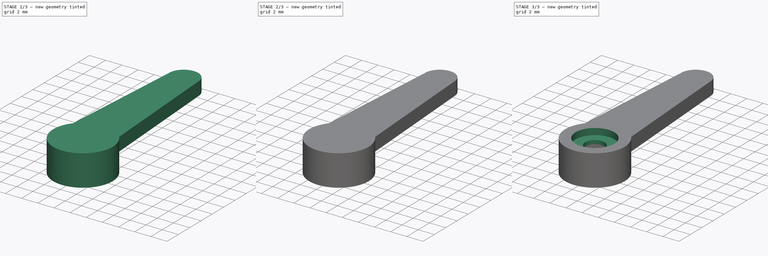
[diagram: build sequence overview — one tinted view per stage of 3, left to right]
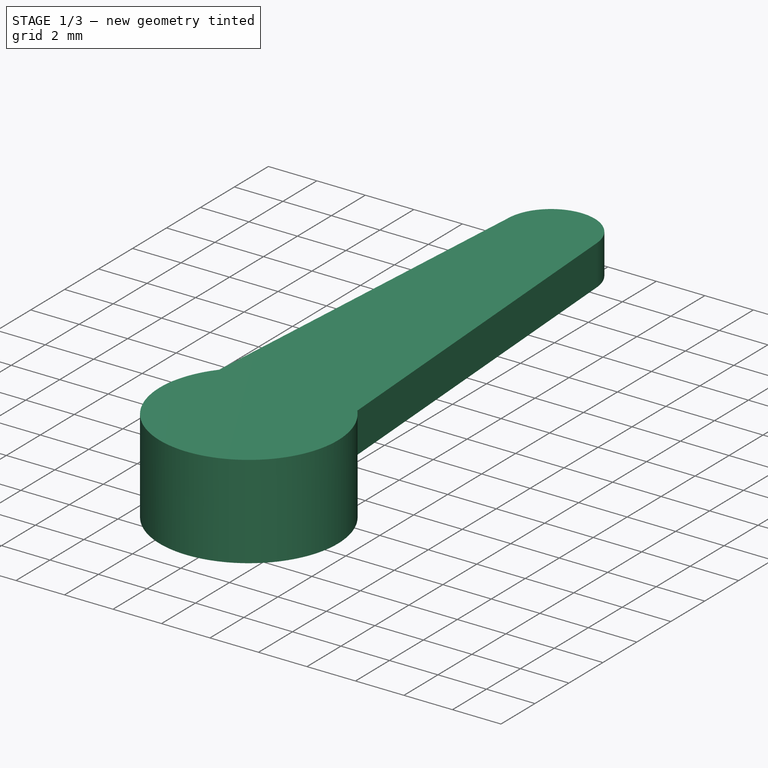
[diagram: stage 1 of 3 — iso view after this stage's code; geometry added in this stage tinted green]
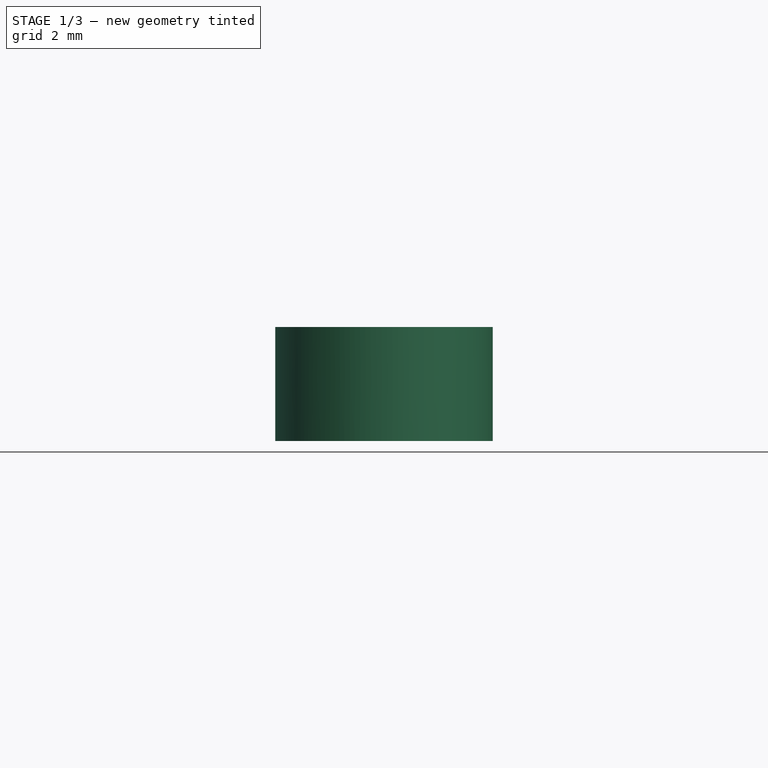
[diagram: stage 1 of 3 — front view after this stage's code; geometry added in this stage tinted green]
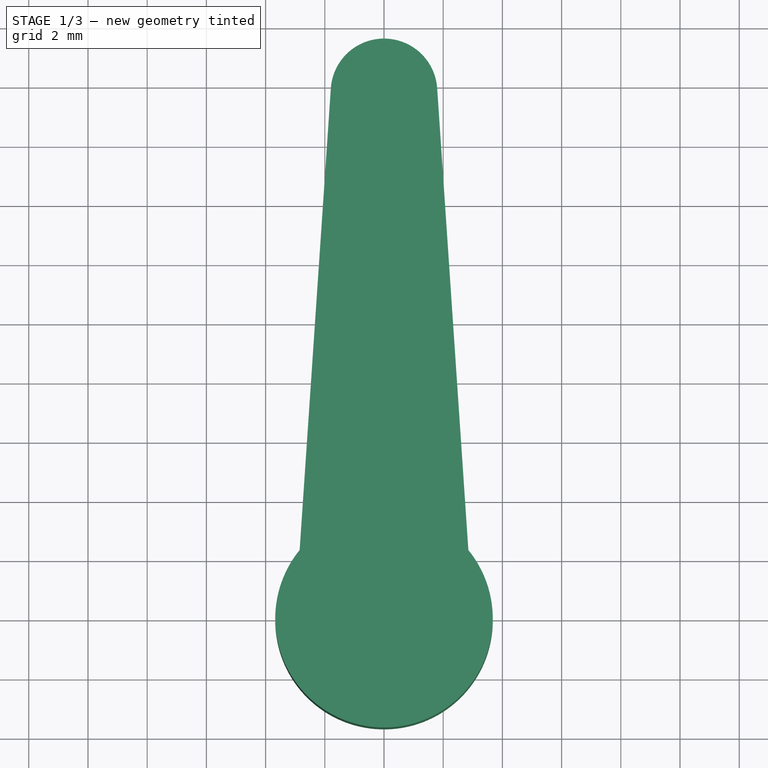
[diagram: stage 1 of 3 — top view after this stage's code; geometry added in this stage tinted green]
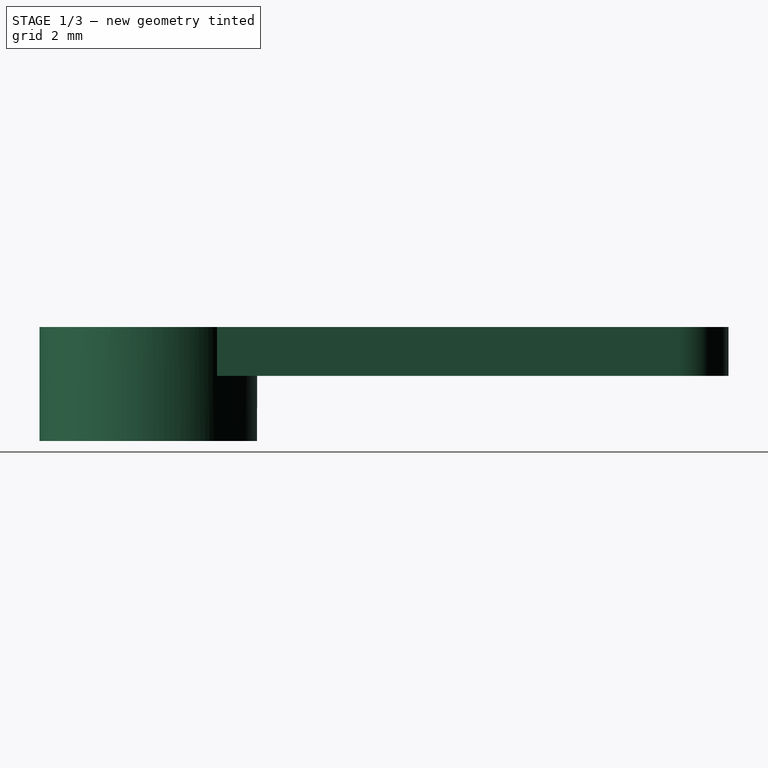
[diagram: stage 1 of 3 — right view after this stage's code; geometry added in this stage tinted green]
FCSTD DOCUMENT  (FreeCAD 0.16R6668 (Git))
Label: servohebel
License: All rights reserved
LicenseURL: http://de.wikipedia.org/wiki/Alle_Rechte_vorbehalten
objects: Sketcher::SketchObject×5, PartDesign::Pocket×3, PartDesign::Pad×2
note: 15 computed .brp shape members not serialized (recipe doc carries the construction recipe); baked Part::Feature solids carry a one-line shape summary decoded from their .brp

FEATURE [Sketcher::SketchObject] Sketch
  sketch-geometry (5):
    g0: LineSegment StartX=-1.7959 StartY=17.9214 StartZ=0 EndX=-2.85 EndY=2.32016 EndZ=0
    g1: LineSegment StartX=1.7959 StartY=17.9214 StartZ=0 EndX=2.85 EndY=2.32016 EndZ=0
    g2: ArcOfCircle CenterX=0 CenterY=17.8 CenterZ=0 NormalX=0 NormalY=0 NormalZ=1 Radius=1.8 StartAngle=0.0674711 EndAngle=3.07412
    g3: ArcOfCircle CenterX=0 CenterY=0 CenterZ=0 NormalX=0 NormalY=0 NormalZ=1 Radius=3.675 StartAngle=2.45832 EndAngle=6.96646
    g4: GeomPoint [constr] X=0 Y=16 Z=0
  constraints (15):
    c: Coincident(g2,g0)
    c: Coincident(g2,g1)
    c: Coincident(g3,g0)
    c: Coincident(g3,g1)
    c: Coincident(g3,g-1)
    c: PointOnObject(g2,g-2)
    c: Tangent(g2,g0)
    c: Tangent(g2,g1)
    c: Symmetric(g0,g1,g-2)
    c: Radius(g3) = 3.675
    c: Radius(g2) = 1.8
    c: Distance(g0,g1) = 5.7
    c: PointOnObject(g4,g2)
    c: PointOnObject(g4,g-2)
    c: Distance(g-1,g4) = 16
FEATURE [PartDesign::Pad] Pad
  Length = 1.65
  Length2 = 100
  Reversed = true
  Sketch = -> Sketch
  Type = 0
FEATURE [Sketcher::SketchObject] Sketch001
  Placement = pos=(0,0,-1.65) rot=(1,0,0;3.14159rad)
  Support = -> Pad [Face6]
  sketch-geometry (1):
    g0: Circle CenterX=0 CenterY=0 CenterZ=0 NormalX=0 NormalY=0 NormalZ=1 Radius=3.675
  constraints (2):
    c: Coincident(g0,g-1)
    c: Radius(g0) = 3.675
FEATURE [PartDesign::Pad] Pad001
  Length = 2.2
  Length2 = 100
  Sketch = -> Sketch001
  Type = 0
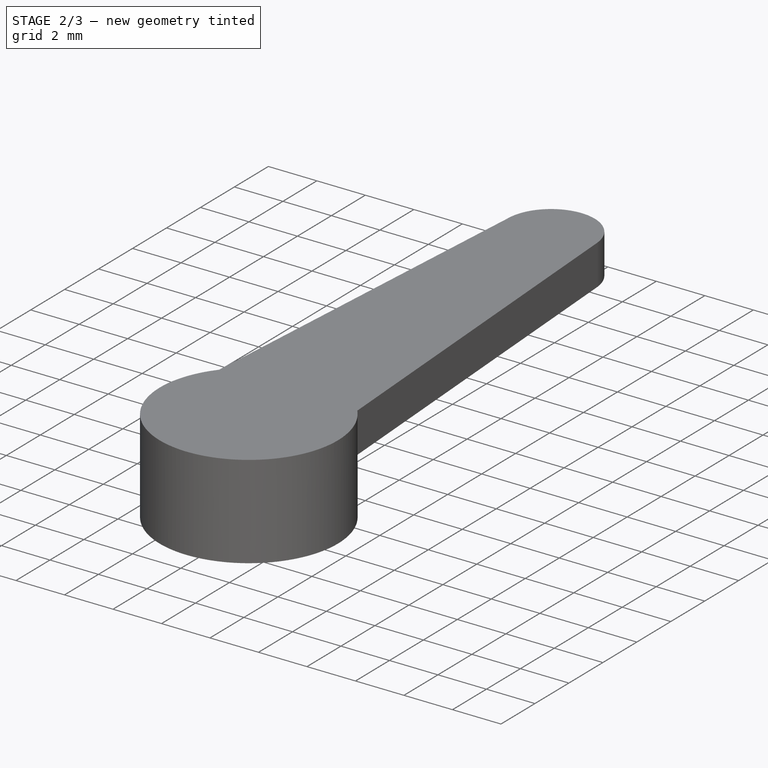
[diagram: stage 2 of 3 — iso view after this stage's code; geometry added in this stage tinted green]
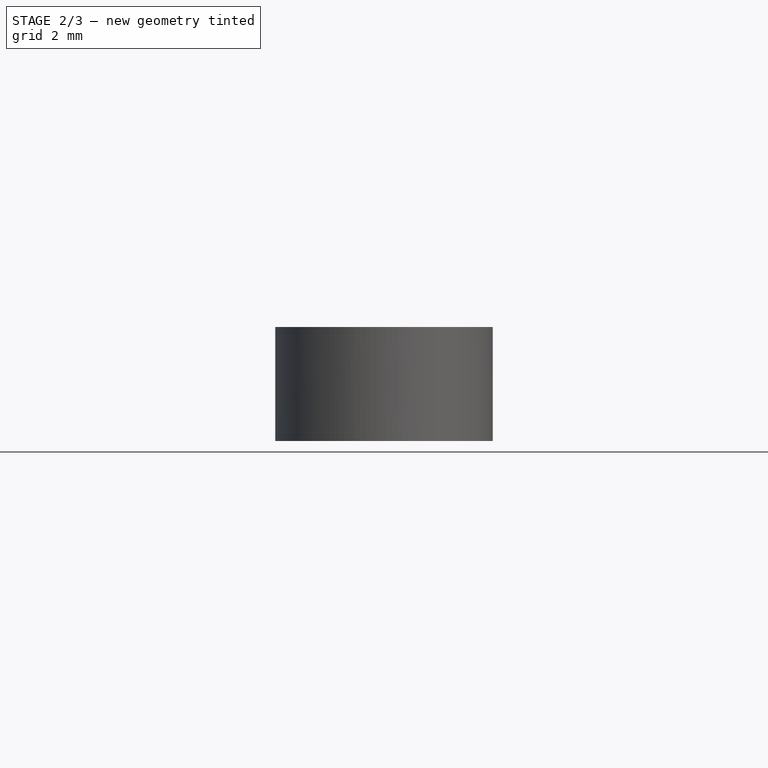
[diagram: stage 2 of 3 — front view after this stage's code; geometry added in this stage tinted green]
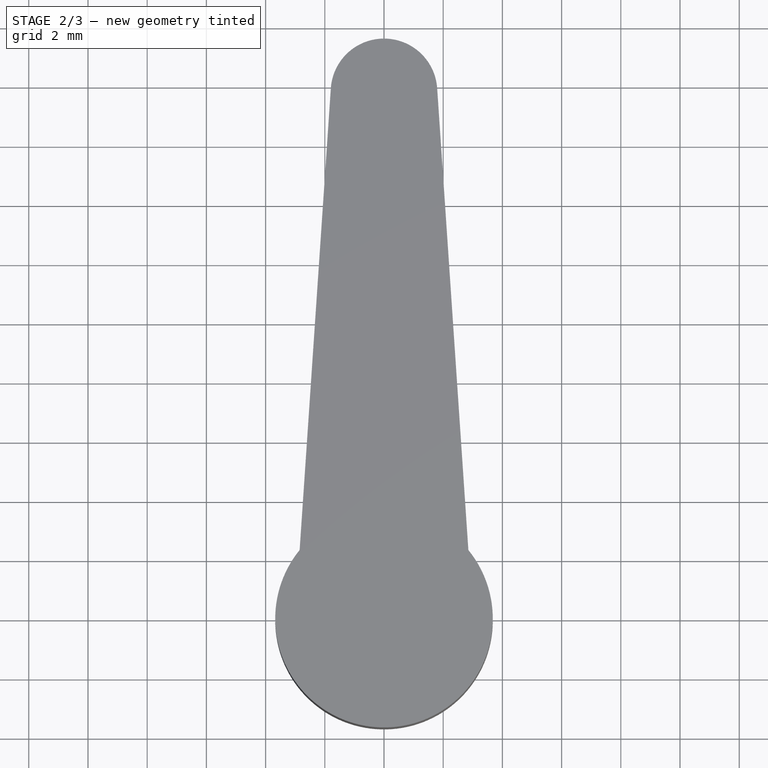
[diagram: stage 2 of 3 — top view after this stage's code; geometry added in this stage tinted green]
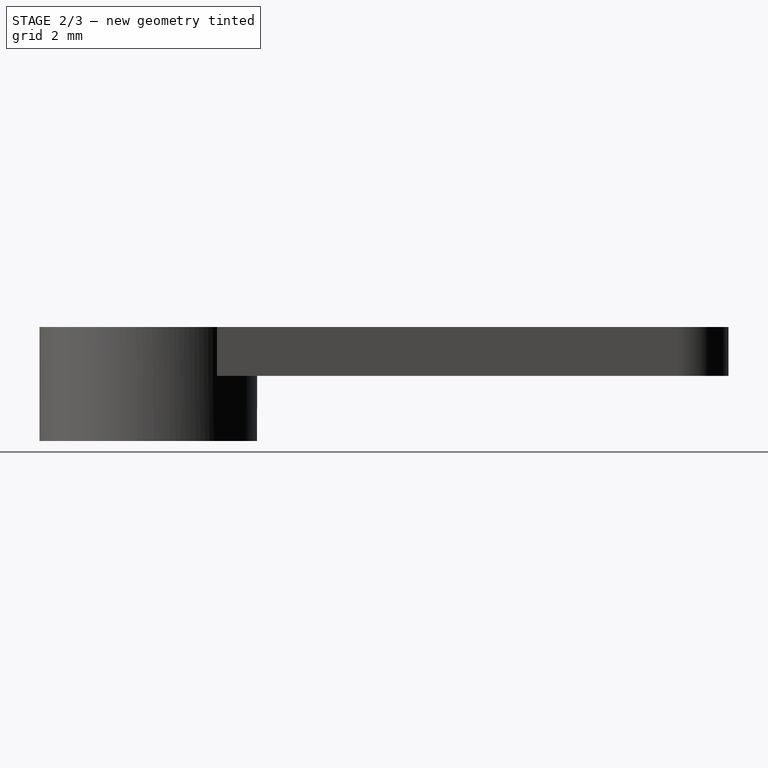
[diagram: stage 2 of 3 — right view after this stage's code; geometry added in this stage tinted green]
FEATURE [Sketcher::SketchObject] Sketch002
  Placement = pos=(0,0,-3.85) rot=(1,0,0;3.14159rad)
  Support = -> Pad001 [Face8]
  sketch-geometry (1):
    g0: Circle CenterX=0 CenterY=0 CenterZ=0 NormalX=0 NormalY=0 NormalZ=1 Radius=1.65
  constraints (2):
    c: Coincident(g0,g-1)
    c: Radius(g0) = 1.65
FEATURE [PartDesign::Pocket] Pocket
  Length = 2.6
  Sketch = -> Sketch002
  Type = 0
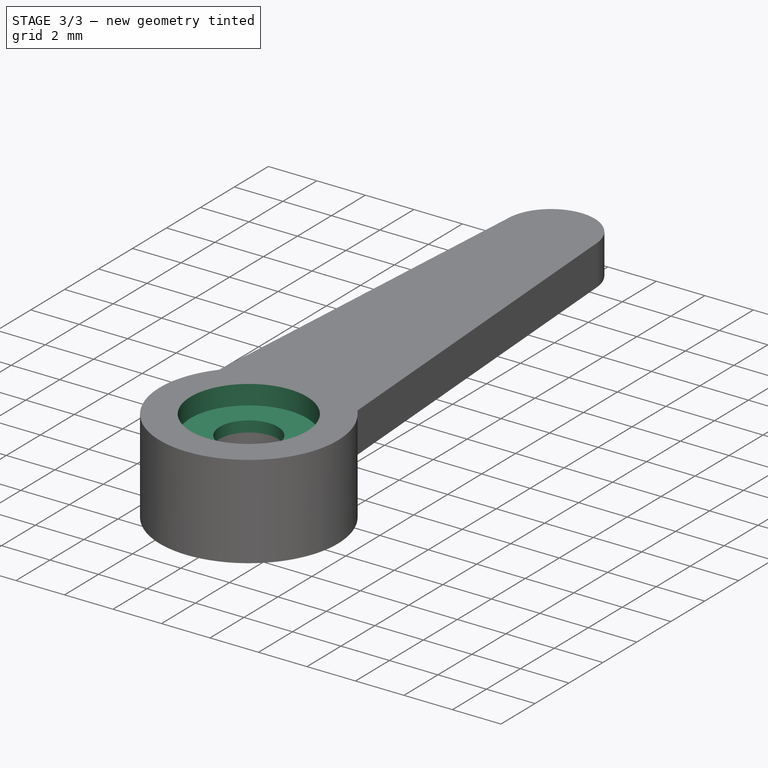
[diagram: stage 3 of 3 — iso view after this stage's code; geometry added in this stage tinted green]
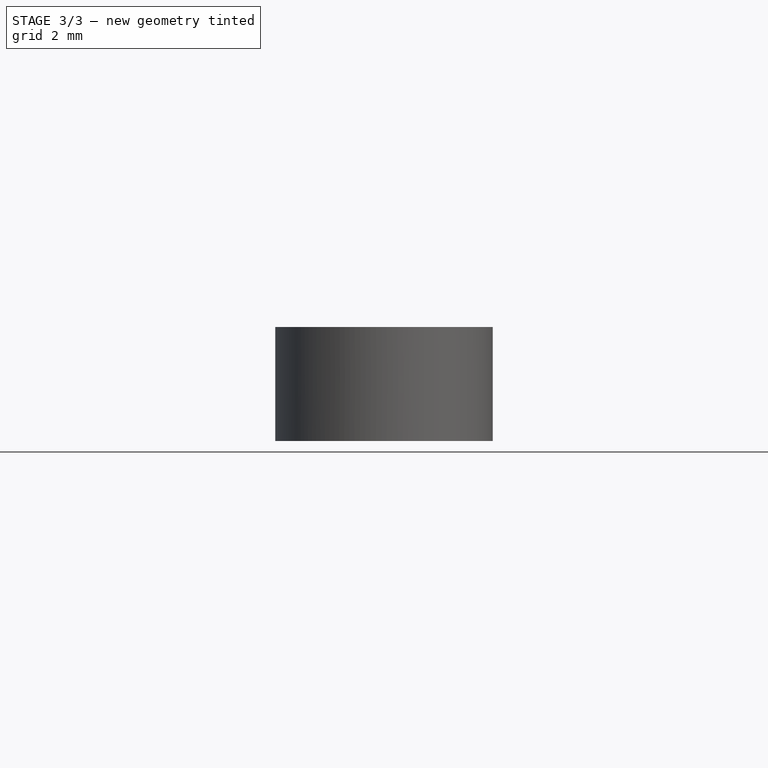
[diagram: stage 3 of 3 — front view after this stage's code; geometry added in this stage tinted green]
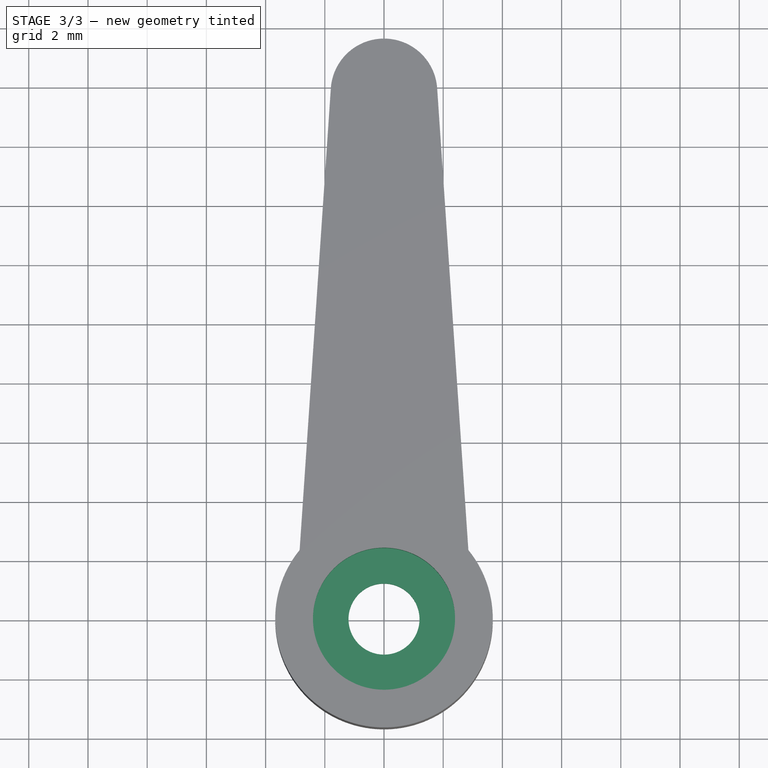
[diagram: stage 3 of 3 — top view after this stage's code; geometry added in this stage tinted green]
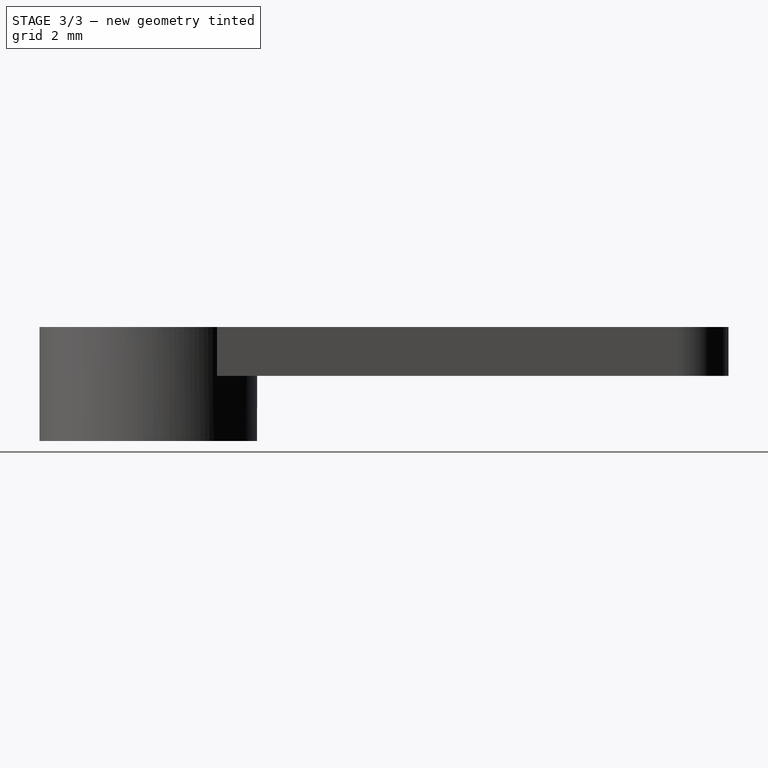
[diagram: stage 3 of 3 — right view after this stage's code; geometry added in this stage tinted green]
FEATURE [Sketcher::SketchObject] Sketch003
  Support = -> Pocket [Face4]
  sketch-geometry (1):
    g0: Circle CenterX=0 CenterY=0 CenterZ=0 NormalX=0 NormalY=0 NormalZ=1 Radius=2.4
  constraints (2):
    c: Coincident(g0,g-1)
    c: Radius(g0) = 2.4
FEATURE [PartDesign::Pocket] Pocket001
  Length = 0.8
  Sketch = -> Sketch003
  Type = 0
FEATURE [Sketcher::SketchObject] Sketch004
  Placement = pos=(0,0,-0.8) rot=(0,0,1;0rad)
  Support = -> Pocket001 [Face9]
  sketch-geometry (1):
    g0: Circle CenterX=0 CenterY=0 CenterZ=0 NormalX=0 NormalY=0 NormalZ=1 Radius=1.2
  constraints (2):
    c: Coincident(g0,g-1)
    c: Radius(g0) = 1.2  'rb'
FEATURE [PartDesign::Pocket] Pocket002  label="result"
  Length = 5
  Sketch = -> Sketch004
  Type = 1
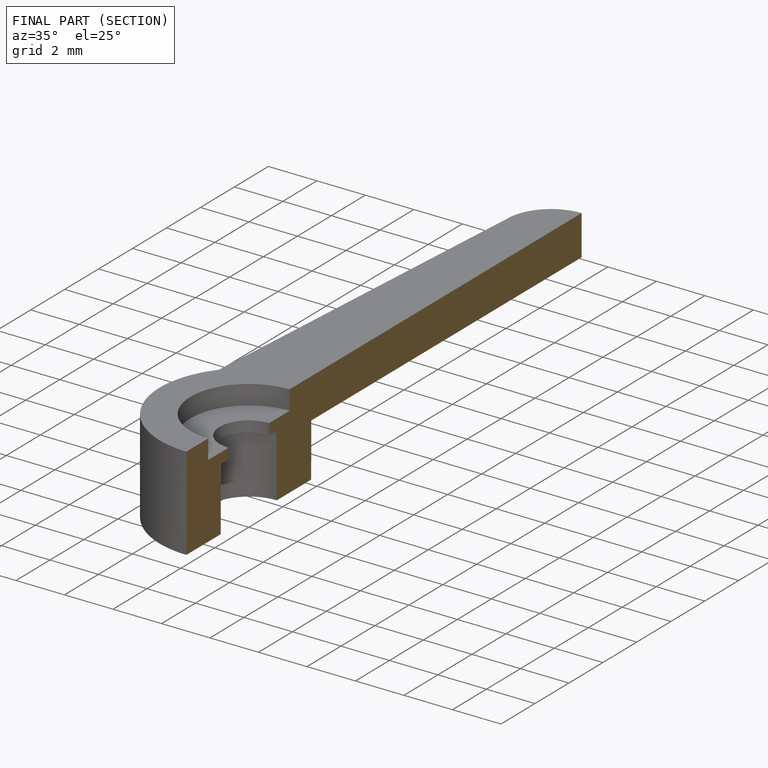
[diagram: finished part — half-section view (interior)]
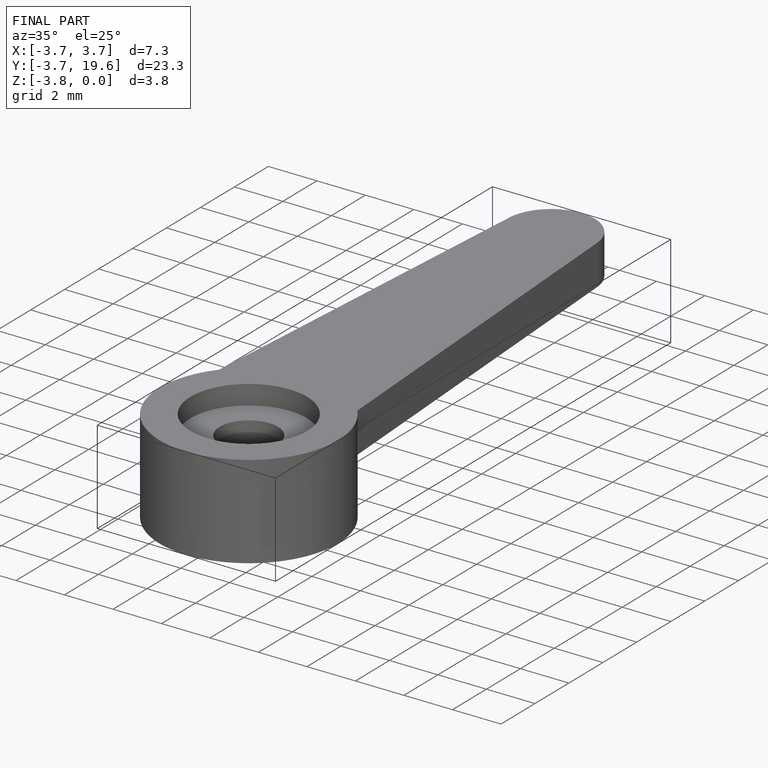
[diagram: finished part — iso view with bounding-box wireframe]
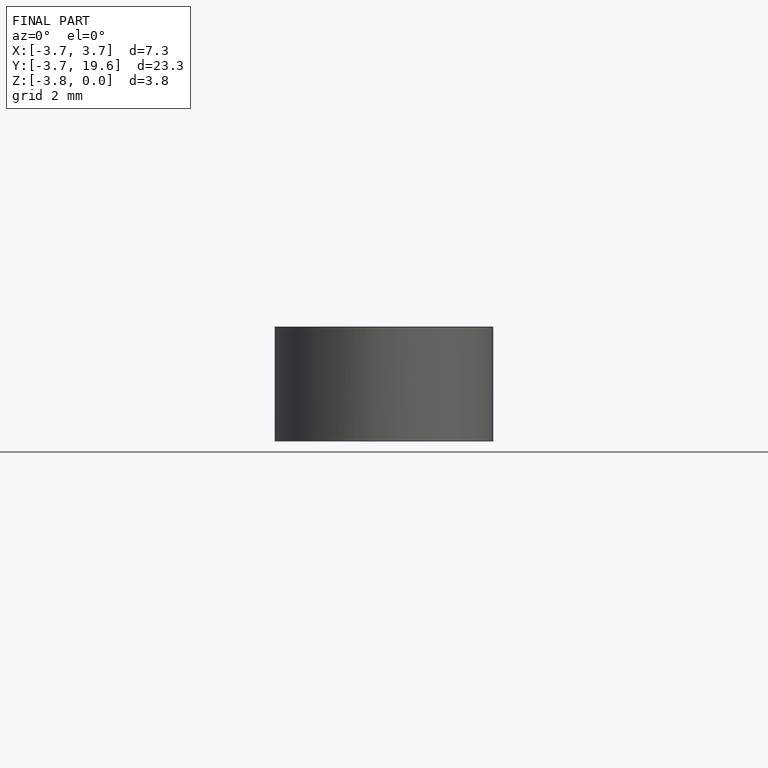
[diagram: finished part — front view with bounding-box wireframe]
